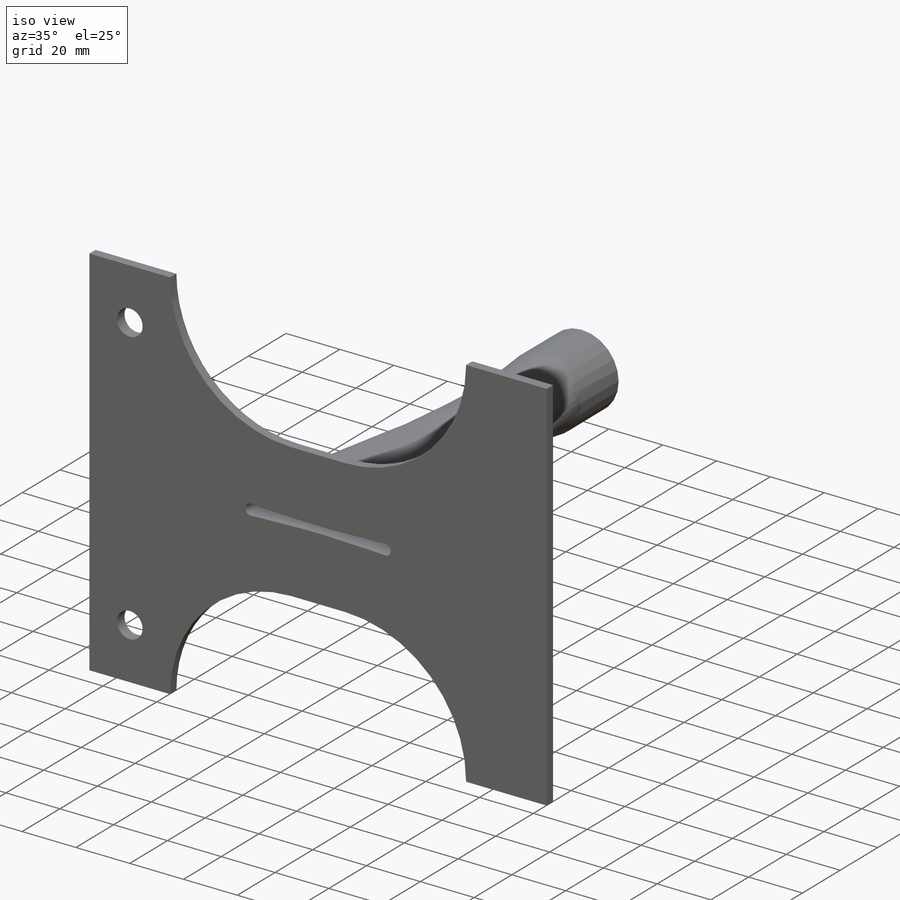
[diagram: iso view]
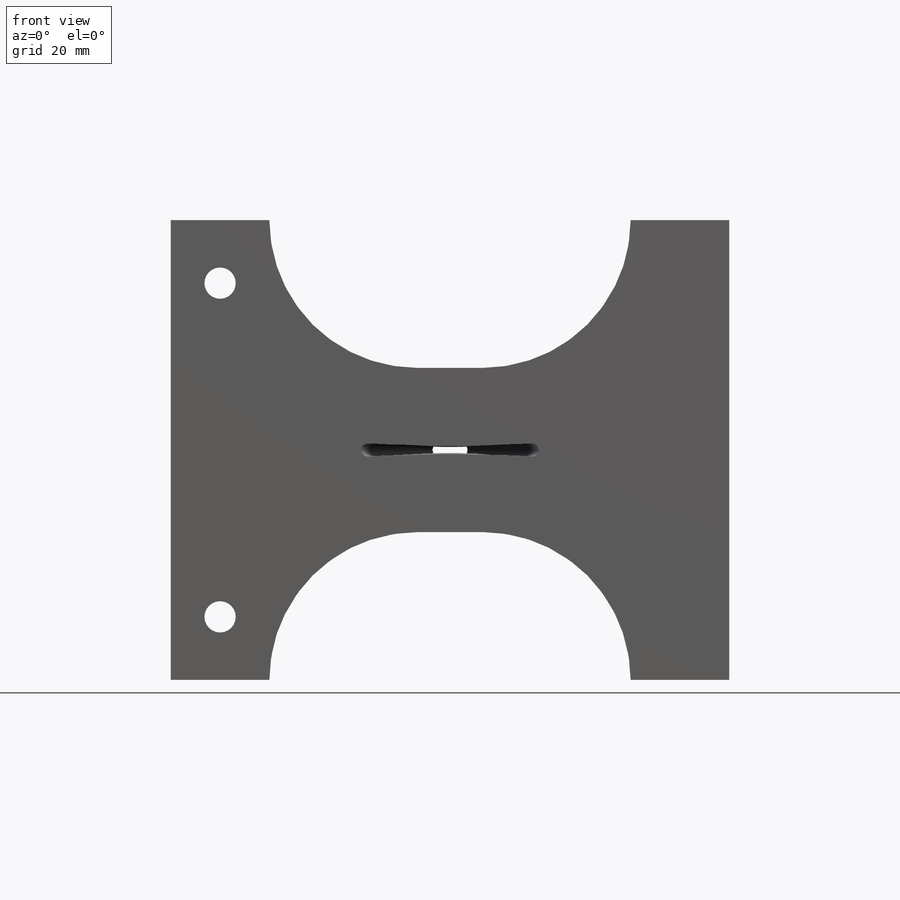
[diagram: front view]
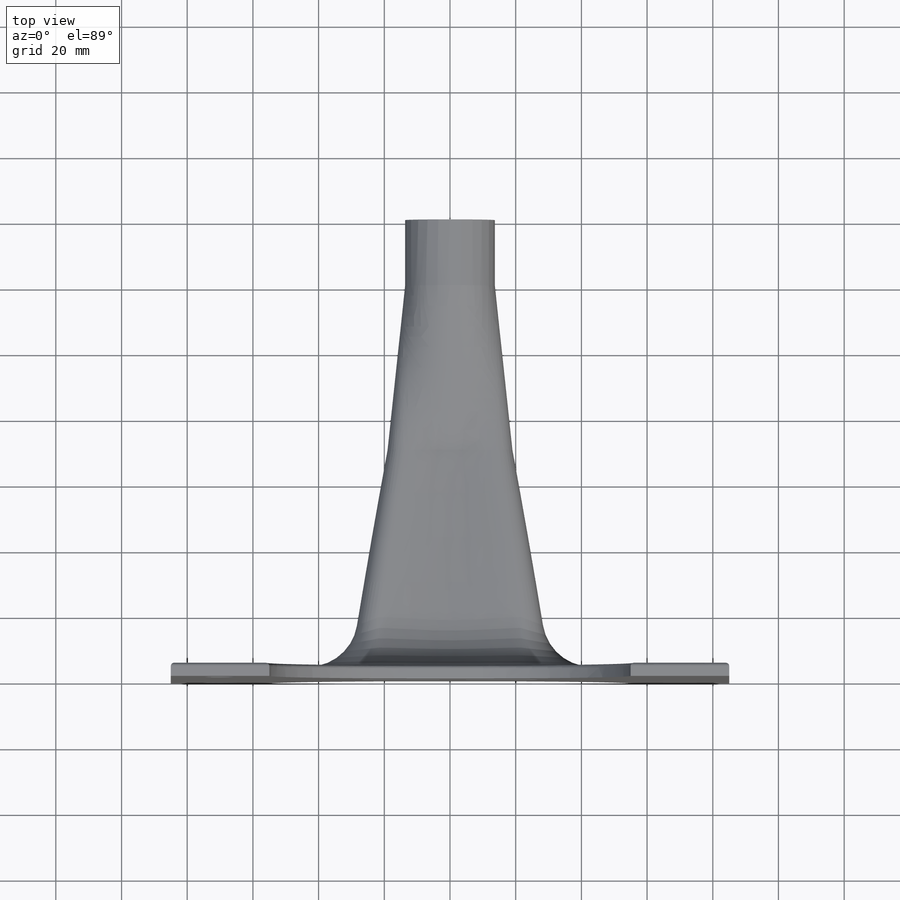
[diagram: top view]
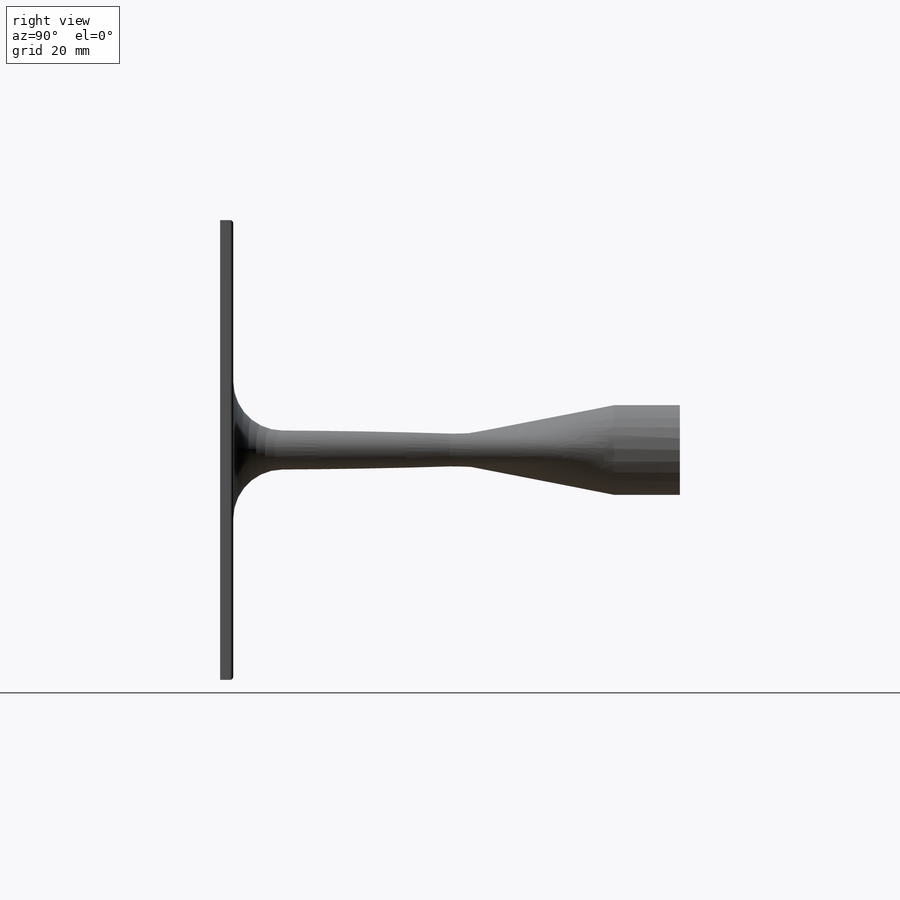
[diagram: right view]
SOLIDWORKS PART (.sldprt)
format: sldprt  version: not decoded by parser v0  size: 608,256 bytes
history: native  units: mm
features: sketch x13, plane x3, extrude x2, fillet x2, material x1, hole x1, cut_extrude x1 (+13 scaffold rows collapsed)
feature tree (36):
  scaffold x13  (default folders/planes/origin — collapsed)
  material  "Acrylic (Medium-high impact)"
  plane  "Shoulder Plane"  Offset=70mm
  plane  "Neck Plane"  Offset=90mm
  plane  "Nozzle Plane"  Offset=120mm
  sketch  "Base Sketch"  dims[c1.D1=20.0mm c1.D2=20.0mm c2.D1=2.0mm c2.D5=3.0mm c2.D2=15.0mm c2.D3=15.0mm c3.D1=~16.895382mm c3.D2=3.5mm c3.D3=10.0mm c3.D4=20.0mm c3.D5=~5.840816mm c3.D6=50.0mm c4.D1=50.0mm c4.D2=4.0mm]
  sketch  "Neck Sketch"  dims[D1=~8.332166mm D2=20.0mm]
  sketch  "Nozzle Sketch"  dims[c1.D1=10.0mm c1.ANSYS_Persist_Key_Value=0.0mm c2.ANSYS_Persist_Key_Value=0.0mm]
  sketch  "Base Outer Sketch"  dims[D1=4.0mm]
  sketch  "Shoulder Outer Sketch"  dims[c1.D2=5.0mm c1.D1=28.0mm c1.D3=~4.541012mm c1.D4=~8.950925mm c1.D5=~4.541012mm c1.D6=~8.950925mm c2.D3=~4.541012mm c2.D4=~8.950925mm c2.D5=~3.242881mm c2.D6=~3.242881mm c3.D5=~3.242881mm]
  sketch  "Nozzle Outer Sketch"  dims[D1=4.0mm]
  sketch  "Sketch5"  dims[c1.D3=30.0mm c1.D1=25.0mm c1.D2=30.0mm c1.D4=20.0mm c2.D3=110.0mm c2.D2=30.0mm c2.D1=140.0mm c3.D2=50.0mm c3.D3=30.0mm c3.D4=170.0mm]
  extrude  "Base Plate"  Depth=4mm
  sketch  "Sketch8"  dims[D1=27.34mm]
  extrude  "Upper Nozzle"  Depth=20mm
  sketch  "Shoulder Outer Sketch<5>"
  sketch  "Sketch8<2>"
  hole  "1/2 NPT Tapped Hole"  Diameter=17.8562mm Depth=19mm
  sketch  "Sketch12"
  sketch  "Sketch11"  dims[hole-wizard template sketch: 50 standard entries collapsed; hole parameters kept: c13.Tap Drill Dia.=17.8562mm c13.Tap Drill Depth=19.0mm c13.Thread Dia.=~20.822742mm c13.D4=~22.362017mm c13.Thread Angle=3.43deg c13.Thread Depth=5.0mm c13.D6=~25.48394mm c13.Drill Angle=118.0deg]
  sketch  "Sketch14"  dims[D1=70.0mm D2=101.6mm]
  cut_extrude  "Cut-Extrude1"  [1 undecoded]
  fillet  "Primary Fillet"  Radius=15mm
  fillet  "Secondary Fillet"  Radius=1mm Persist_Attrib_Count_Val=6 ANS_PERSIST_COUNT=0mm ANSYS_Persist_Key_Value=0mm
decode coverage: 15 of 19 modeling features carry decoded parameters
note: ~ marks probable driven/reference dimensions
note: 1 parameter value undecoded
note: suppression state not decoded; provenance and decode notes live in map.json
